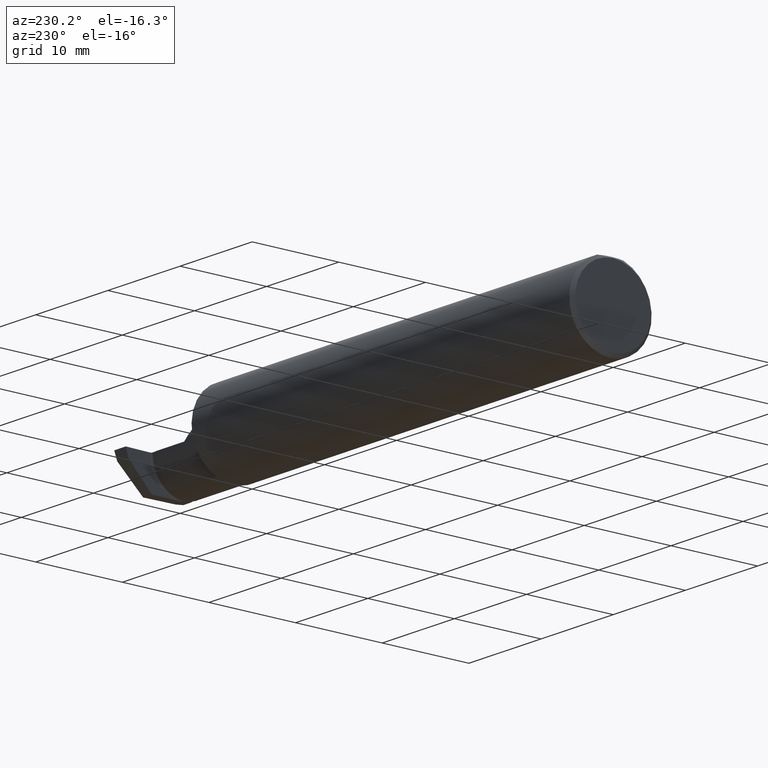
[diagram: clean part render]
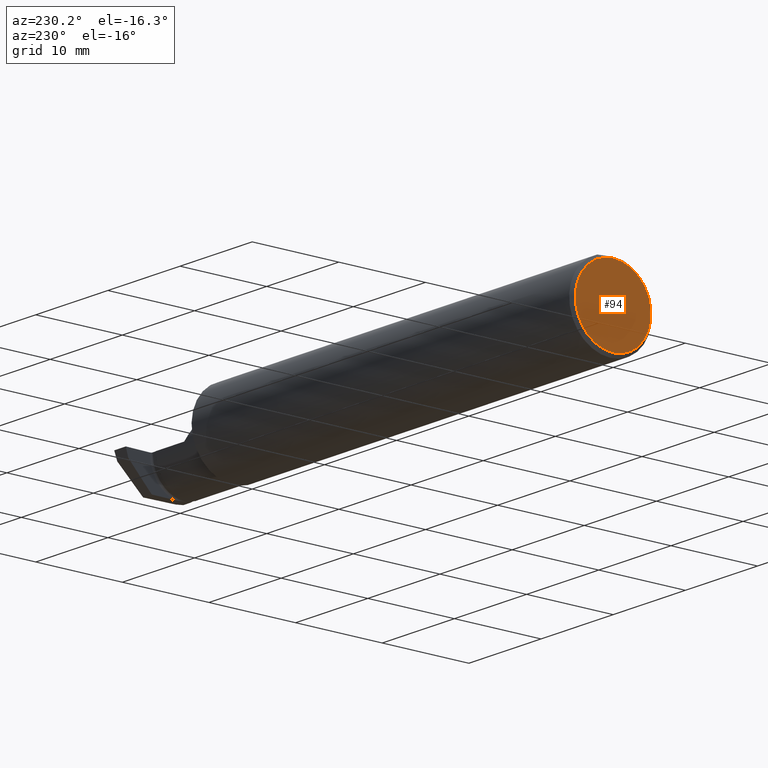
[diagram: same view with one face highlighted and labeled with its STEP entity id]
A machine part, auxiliary view. The second image highlights one B-rep face of the part: STEP entity #94.
In plain terms, the highlighted planar face has unit normal (1, 0, 0).
Its self-contained STEP definition (entity closure, byte-faithful):
#39 = PLANE ( 'NONE',  #224 ) ;
#55 = CARTESIAN_POINT ( 'NONE',  ( 0.000000000000000000, 0.000000000000000000, 0.000000000000000000 ) ) ;
#83 = CIRCLE ( 'NONE', #714, 0.1723499999999999754 ) ;
#94 = ADVANCED_FACE ( 'NONE', ( #674 ), #39, .F. ) ;
#109 = CARTESIAN_POINT ( 'NONE',  ( 0.000000000000000000, 0.000000000000000000, 0.000000000000000000 ) ) ;
#203 = DIRECTION ( 'NONE',  ( 0.000000000000000000, 0.000000000000000000, 1.000000000000000000 ) ) ;
#222 = DIRECTION ( 'NONE',  ( -1.000000000000000000, -0.000000000000000000, -0.000000000000000000 ) ) ;
#224 = AXIS2_PLACEMENT_3D ( 'NONE', #360, #285, #513 ) ;
#255 = AXIS2_PLACEMENT_3D ( 'NONE', #55, #222, #375 ) ;
#285 = DIRECTION ( 'NONE',  ( 1.000000000000000000, 0.000000000000000000, 0.000000000000000000 ) ) ;
#360 = CARTESIAN_POINT ( 'NONE',  ( 0.000000000000000000, 0.000000000000000000, 0.000000000000000000 ) ) ;
#375 = DIRECTION ( 'NONE',  ( 0.000000000000000000, 0.000000000000000000, 1.000000000000000000 ) ) ;
#420 = VERTEX_POINT ( 'NONE', #807 ) ;
#449 = EDGE_LOOP ( 'NONE', ( #1034, #747 ) ) ;
#513 = DIRECTION ( 'NONE',  ( 0.000000000000000000, 0.000000000000000000, -1.000000000000000000 ) ) ;
#583 = CARTESIAN_POINT ( 'NONE',  ( 0.000000000000000000, 0.000000000000000000, -0.1723499999999999754 ) ) ;
#673 = EDGE_CURVE ( 'NONE', #968, #420, #83, .T. ) ;
#674 = FACE_OUTER_BOUND ( 'NONE', #449, .T. ) ;
#714 = AXIS2_PLACEMENT_3D ( 'NONE', #109, #776, #203 ) ;
#747 = ORIENTED_EDGE ( 'NONE', *, *, #774, .T. ) ;
#774 = EDGE_CURVE ( 'NONE', #420, #968, #810, .T. ) ;
#776 = DIRECTION ( 'NONE',  ( -1.000000000000000000, -0.000000000000000000, -0.000000000000000000 ) ) ;
#807 = CARTESIAN_POINT ( 'NONE',  ( 0.000000000000000000, 2.202527268266524596E-17, 0.1723499999999999754 ) ) ;
#810 = CIRCLE ( 'NONE', #255, 0.1723499999999999754 ) ;
#968 = VERTEX_POINT ( 'NONE', #583 ) ;
#1034 = ORIENTED_EDGE ( 'NONE', *, *, #673, .T. ) ;